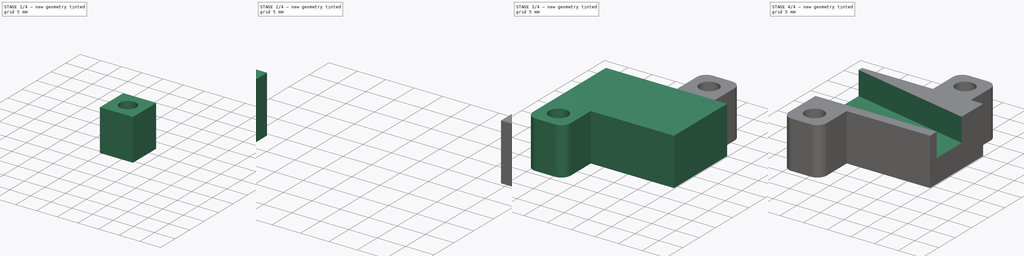
[diagram: build sequence overview — one tinted view per stage of 4, left to right]
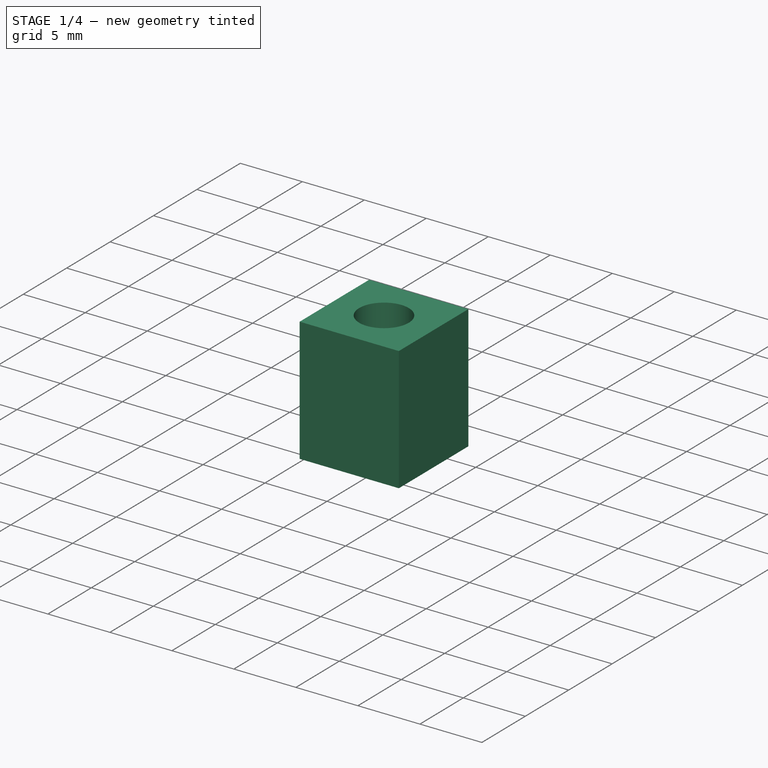
[diagram: stage 1 of 4 — iso view after this stage's code; geometry added in this stage tinted green]
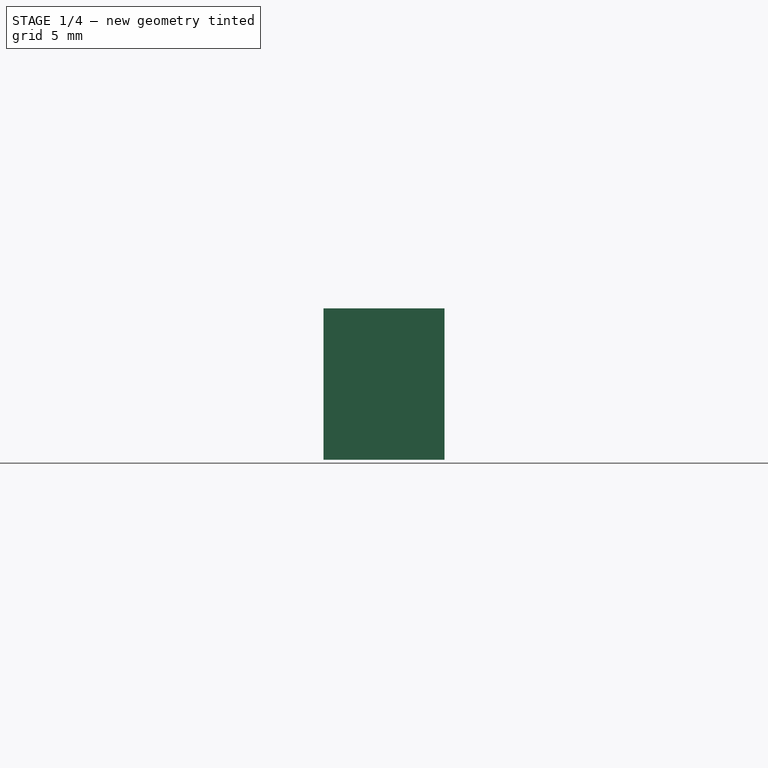
[diagram: stage 1 of 4 — front view after this stage's code; geometry added in this stage tinted green]
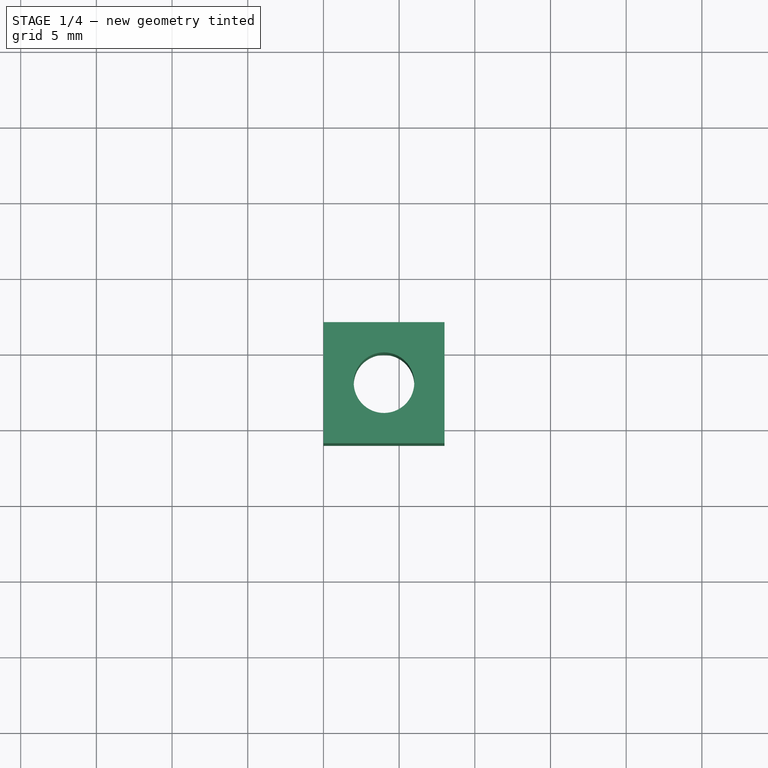
[diagram: stage 1 of 4 — top view after this stage's code; geometry added in this stage tinted green]
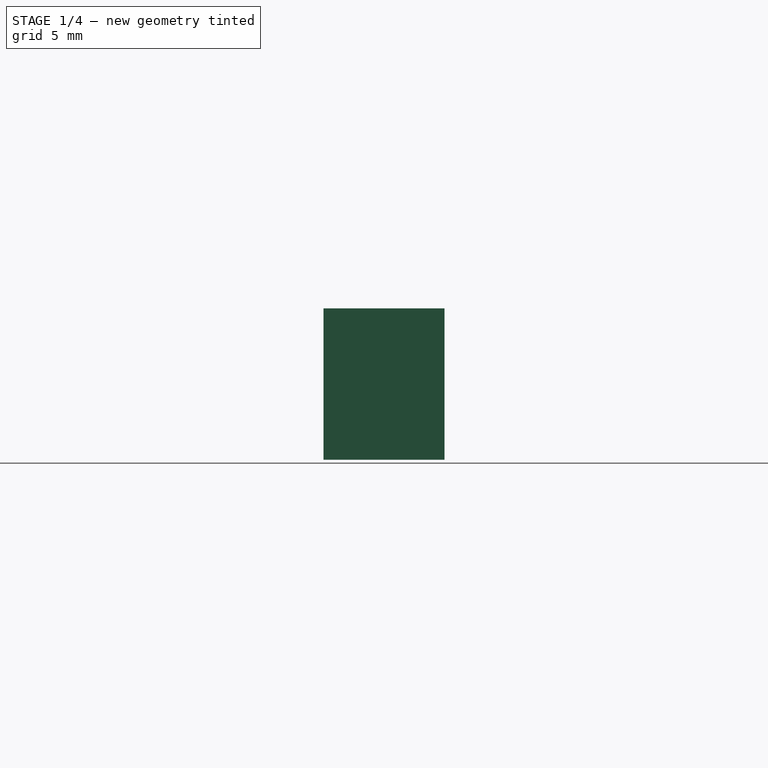
[diagram: stage 1 of 4 — right view after this stage's code; geometry added in this stage tinted green]
FCSTD DOCUMENT  (FreeCAD 0.19R)
Label: CaliperHeads
License: All rights reserved
LicenseURL: http://en.wikipedia.org/wiki/All_rights_reserved
objects: Part::Box×3, Part::Cut×3, Part::Cylinder×2, Part::Fillet×2, Sketcher::SketchObject×1, PartDesign::Pad×1, PartDesign::Body×1, Part::MultiFuse×1
note: 15 computed .brp shape members not serialized (recipe doc carries the construction recipe); baked Part::Feature solids carry a one-line shape summary decoded from their .brp

FEATURE [Part::Cylinder] Cylinder005
  Angle = 360
  AttacherType = Attacher::AttachEngine3D
  Height = 10
  Placement = pos=(4,4,0) rot=(0,0,1;0rad)
  Radius = 2
FEATURE [Part::Box] Box004  label="Cube004"
  AttacherType = Attacher::AttachEngine3D
  Height = 10
  Length = 8
  Width = 8
FEATURE [Part::Cut] Cut005
  Base = -> Box004
  Placement = pos=(45,14,0) rot=(0,0,1;0rad)
  Tool = -> Cylinder005
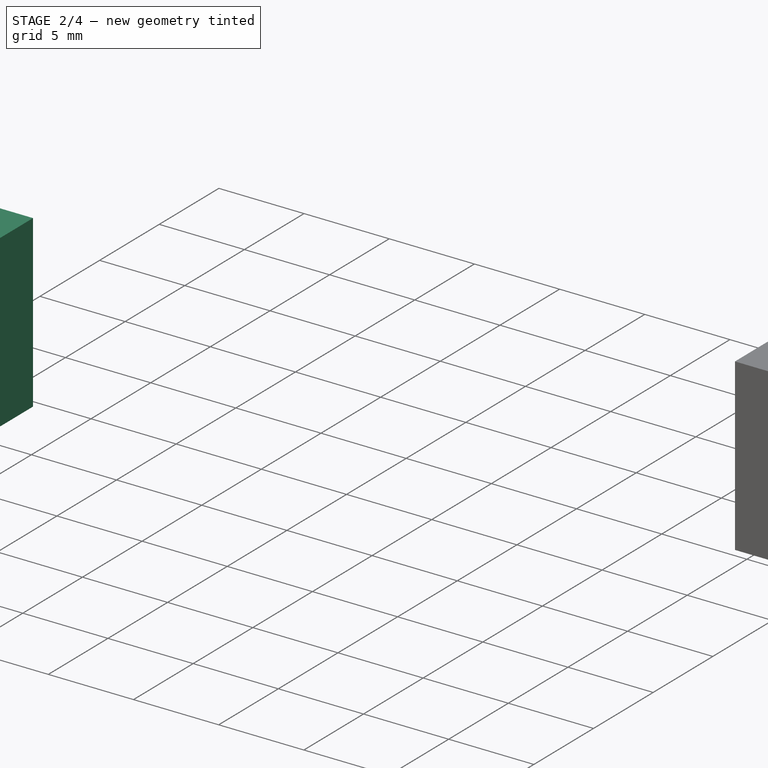
[diagram: stage 2 of 4 — iso view after this stage's code; geometry added in this stage tinted green]
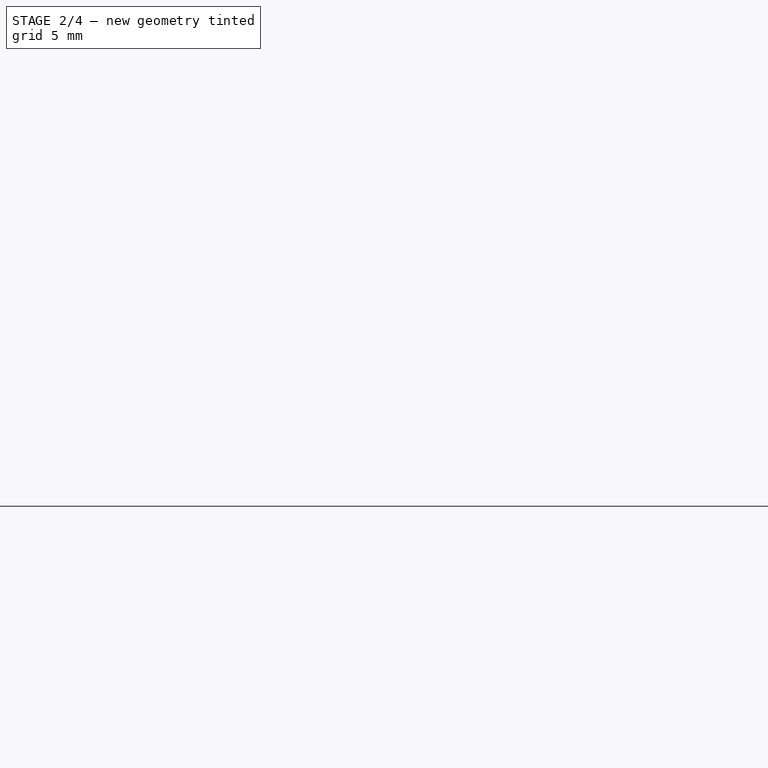
[diagram: stage 2 of 4 — front view after this stage's code; geometry added in this stage tinted green]
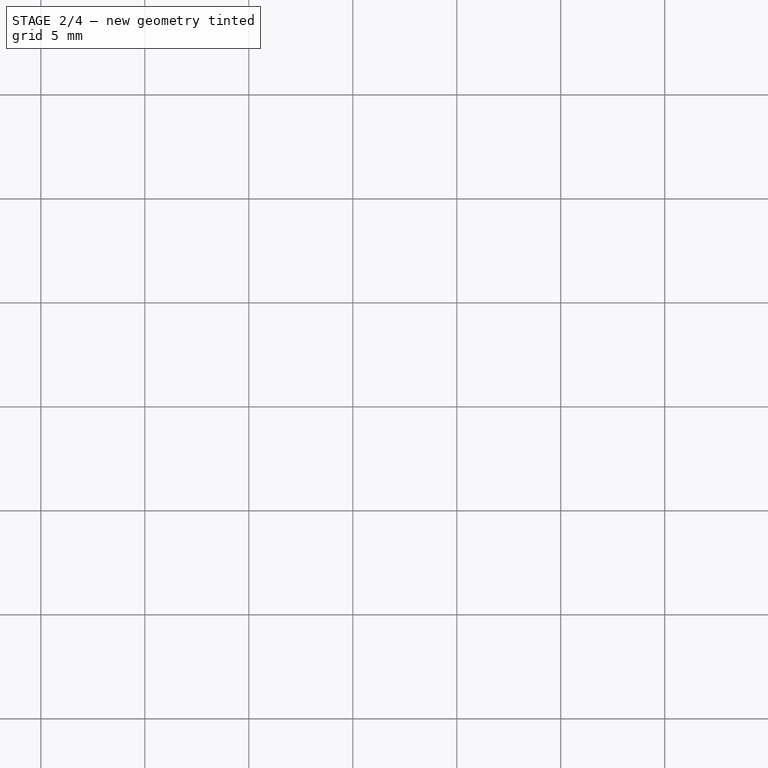
[diagram: stage 2 of 4 — top view after this stage's code; geometry added in this stage tinted green]
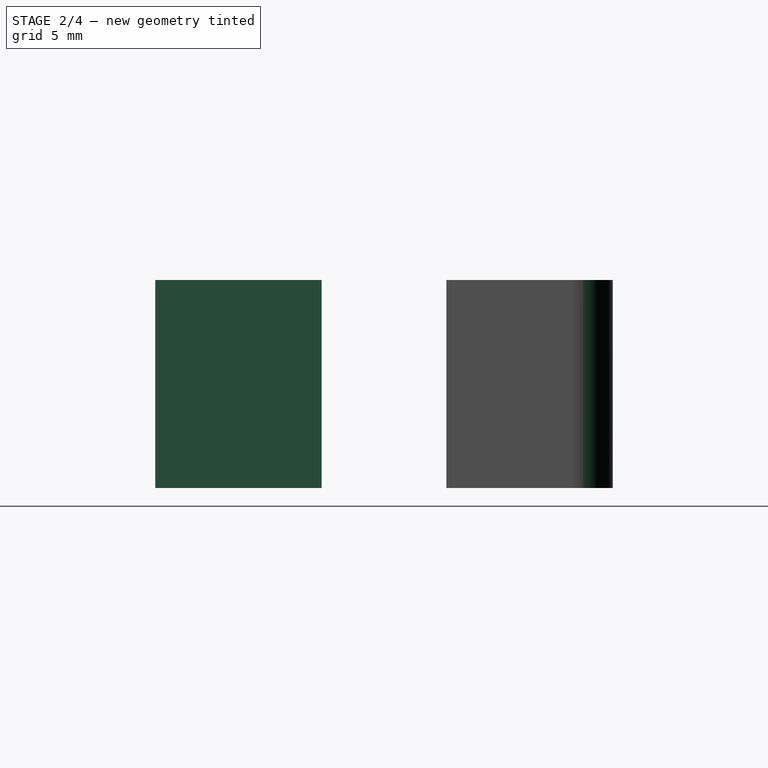
[diagram: stage 2 of 4 — right view after this stage's code; geometry added in this stage tinted green]
FEATURE [Part::Box] Box003  label="Cube003"
  AttacherType = Attacher::AttachEngine3D
  Height = 10
  Length = 8
  Width = 8
FEATURE [Part::Cylinder] Cylinder004
  Angle = 360
  AttacherType = Attacher::AttachEngine3D
  Height = 10
  Placement = pos=(4,4,0) rot=(0,0,1;0rad)
  Radius = 2
FEATURE [Part::Fillet] Fillet001
  Base = -> Cut005
  Edges = 2 edges r=2: [Edge3,Edge12]
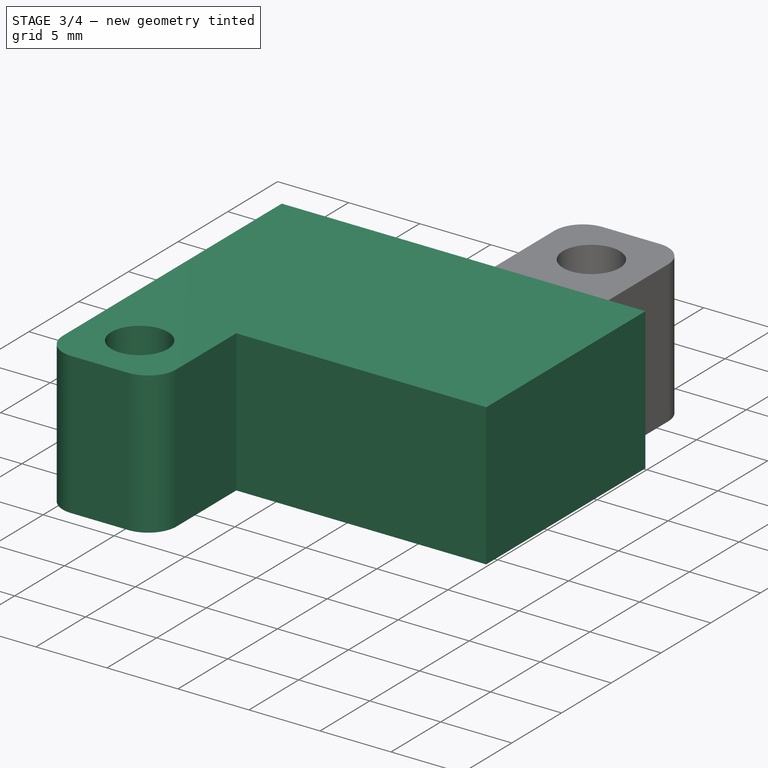
[diagram: stage 3 of 4 — iso view after this stage's code; geometry added in this stage tinted green]
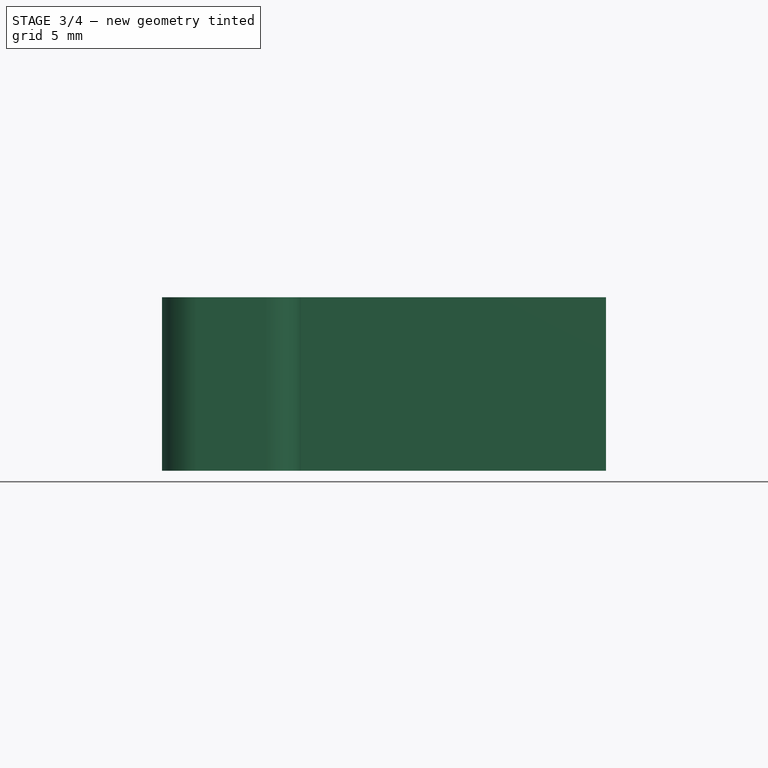
[diagram: stage 3 of 4 — front view after this stage's code; geometry added in this stage tinted green]
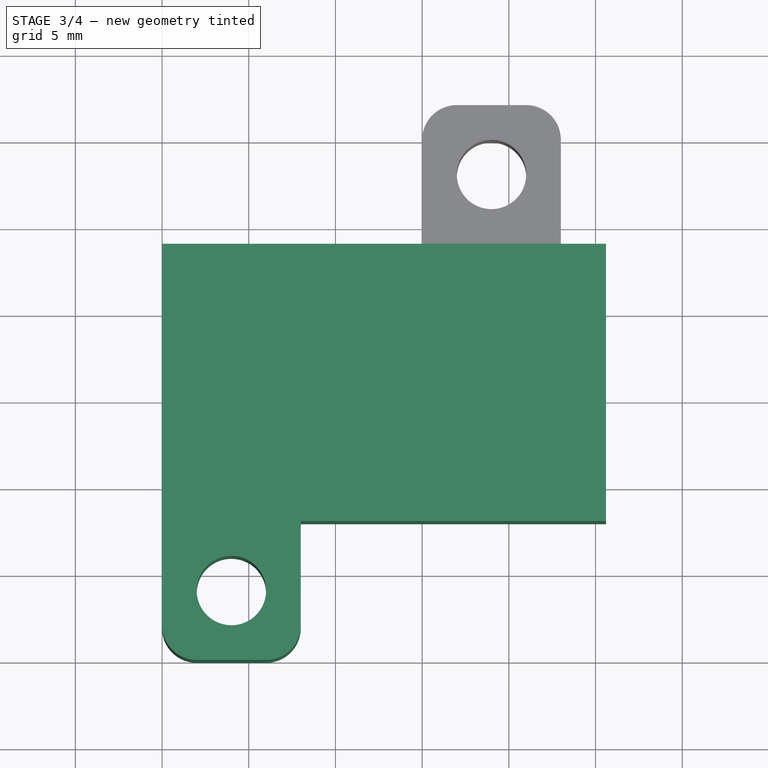
[diagram: stage 3 of 4 — top view after this stage's code; geometry added in this stage tinted green]
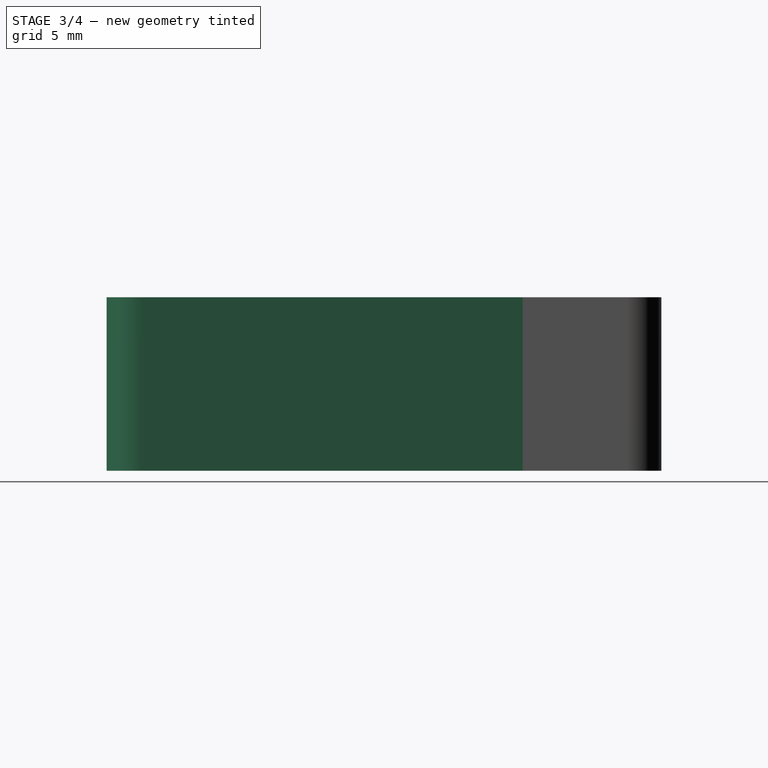
[diagram: stage 3 of 4 — right view after this stage's code; geometry added in this stage tinted green]
FEATURE [PartDesign::Body] Body001  label="200mmBody"
  Group = -> [Sketch001,Pad001]
  Origin = -> Origin001
  Placement = pos=(0,0,5) rot=(0,0,1;0rad)
  Tip = -> Pad001
FEATURE [Part::Box] Box001  label="Cube001"
  AttacherType = Attacher::AttachEngine3D
  Height = 10
  Length = 25.6
  Placement = pos=(30,-2,0) rot=(0,0,1;0rad)
  Width = 16
FEATURE [Part::Cut] Cut004
  Base = -> Box003
  Placement = pos=(30,-10,0) rot=(0,0,1;0rad)
  Tool = -> Cylinder004
FEATURE [Part::Fillet] Fillet
  Base = -> Cut004
  Edges = 2 edges r=2: [Edge1,Edge6]
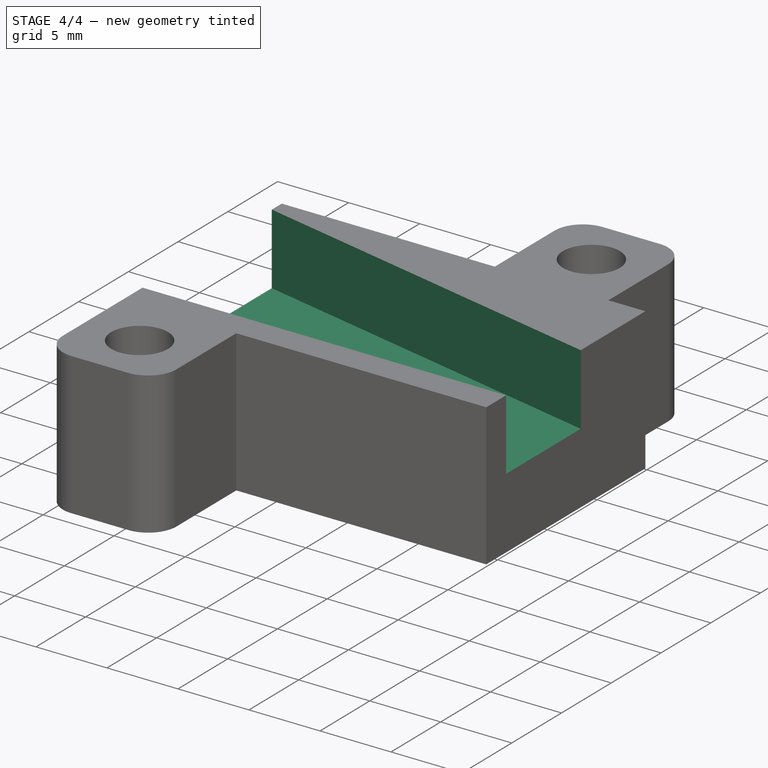
[diagram: stage 4 of 4 — iso view after this stage's code; geometry added in this stage tinted green]
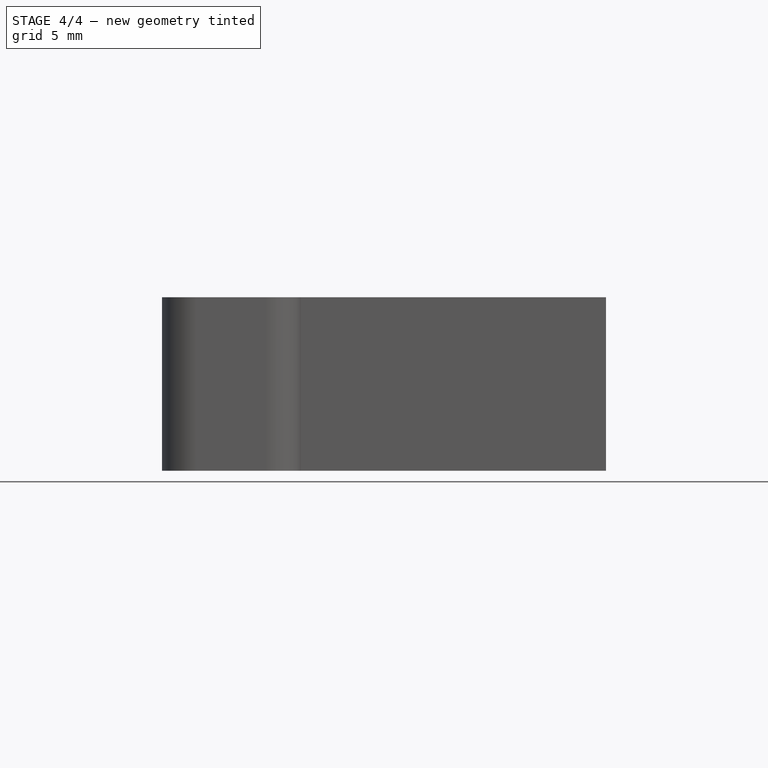
[diagram: stage 4 of 4 — front view after this stage's code; geometry added in this stage tinted green]
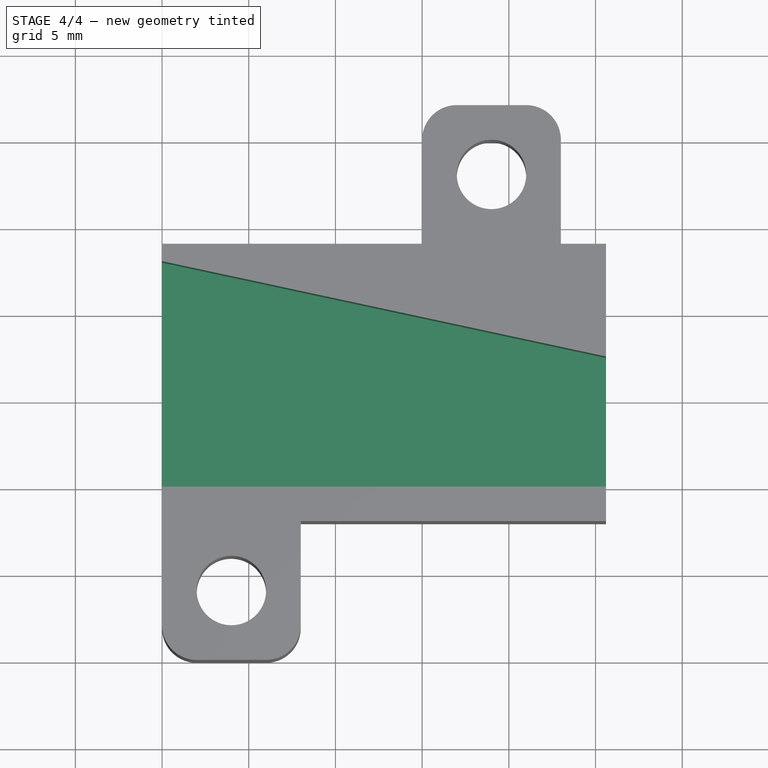
[diagram: stage 4 of 4 — top view after this stage's code; geometry added in this stage tinted green]
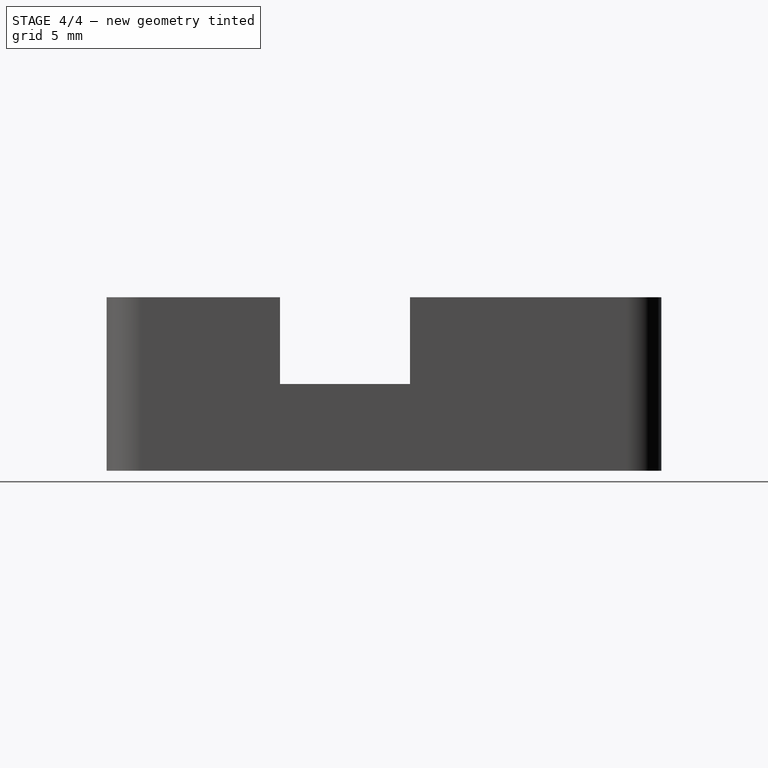
[diagram: stage 4 of 4 — right view after this stage's code; geometry added in this stage tinted green]
FEATURE [Sketcher::SketchObject] Sketch001
  FullyConstrained = true
  Placement = pos=(0,0,0) rot=(0,0,1;3.14159rad)
  sketch-geometry (4):
    g0: LineSegment StartX=-30 StartY=0 StartZ=0 EndX=-30 EndY=-13 EndZ=0
    g1: LineSegment StartX=-30 StartY=-13 StartZ=0 EndX=-55.6 EndY=-7.5 EndZ=0
    g2: LineSegment StartX=-55.6 StartY=-7.5 StartZ=0 EndX=-55.6 EndY=0 EndZ=0
    g3: LineSegment StartX=-55.6 StartY=0 StartZ=0 EndX=-30 EndY=0 EndZ=0
  constraints (12):
    c: Vertical(g2)
    c: Vertical(g0)
    c: Horizontal(g3)
    c: Coincident(g2,g3)
    c: Coincident(g0,g3)
    c: Coincident(g1,g2)
    c: Coincident(g0,g1)
    c: DistanceY(g2,g2) = 7.5
    c: DistanceY(g0,g0) = 13
    c: DistanceX(g3,g3) = 25.6
    c: DistanceX(g0,g-1) = 30
    c: DistanceY(g-1,g0) = 0
FEATURE [PartDesign::Pad] Pad001
  Direction = (1,1,1)
  Length = 5
  Length2 = 100
  Placement = pos=(0,0,0) rot=(0,0,1;3.14159rad)
  Profile = -> Sketch001
  Type = 0
FEATURE [Part::Cut] Cut001
  Base = -> Box001
  Tool = -> Body001
FEATURE [Part::MultiFuse] Fusion  label="200mm"
  Shapes = -> [Cut001,Fillet,Fillet001]
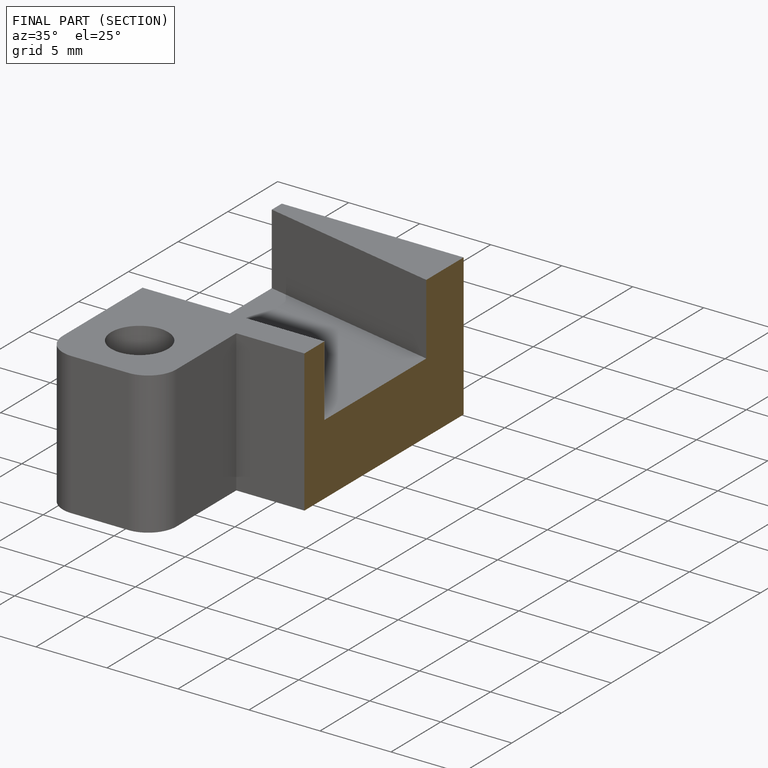
[diagram: finished part — half-section view (interior)]
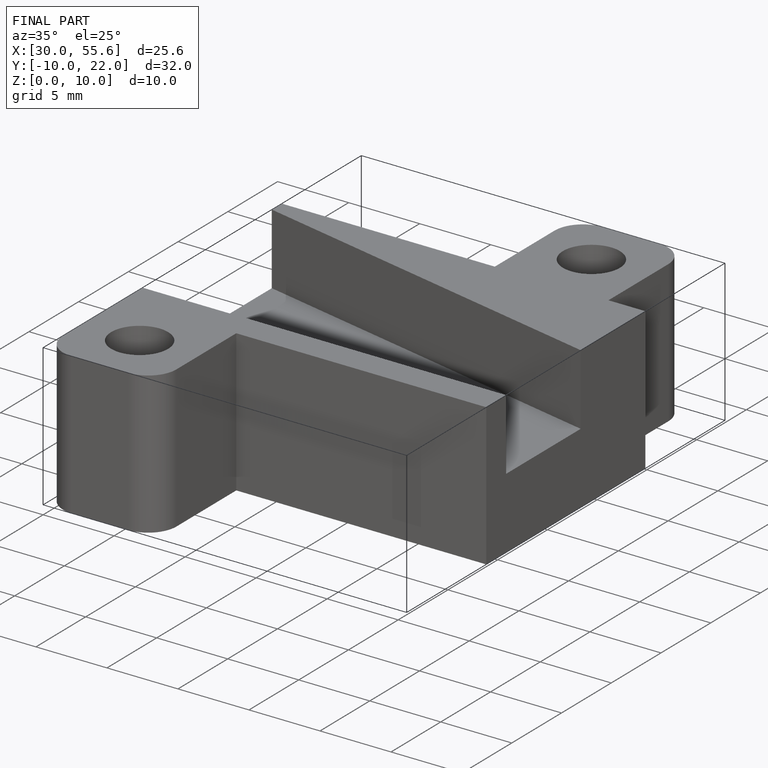
[diagram: finished part — iso view with bounding-box wireframe]
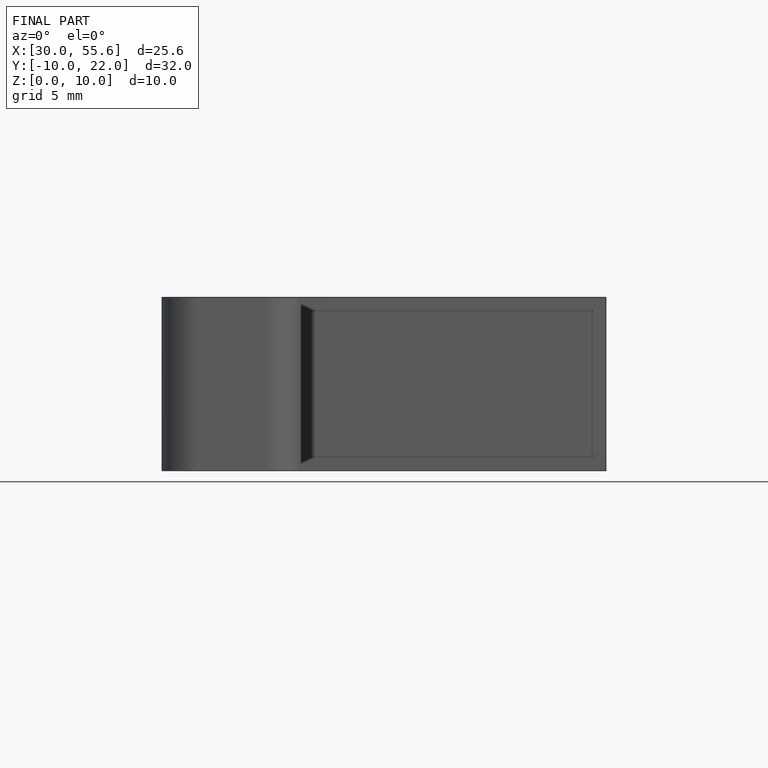
[diagram: finished part — front view with bounding-box wireframe]
